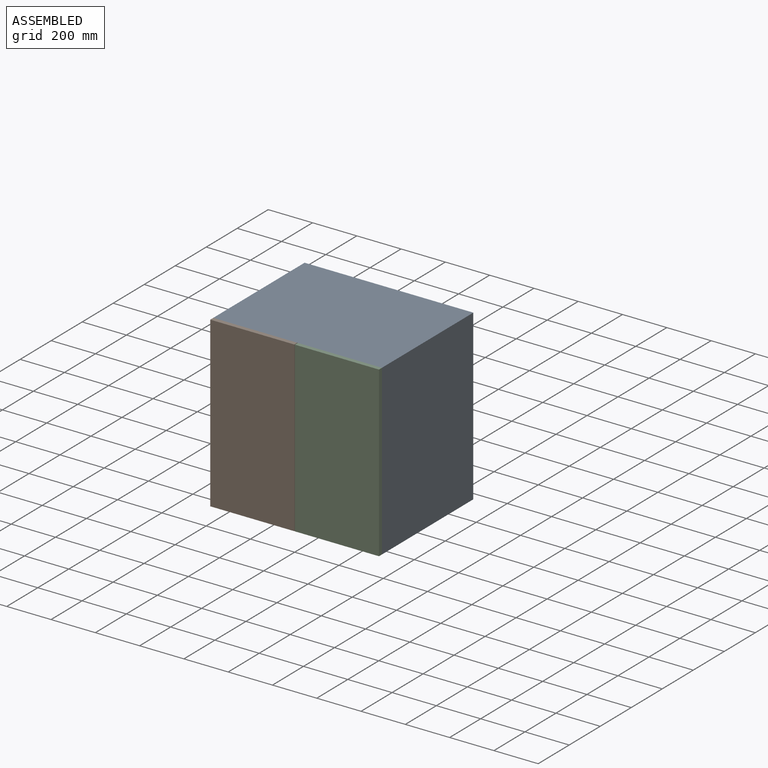
[diagram: assembled view]
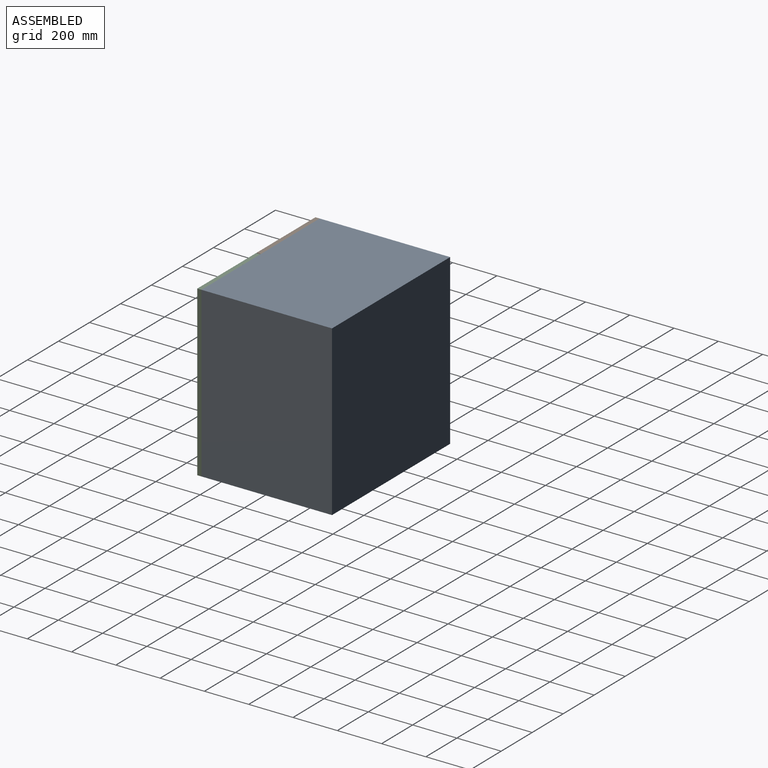
[diagram: assembled view, second angle]
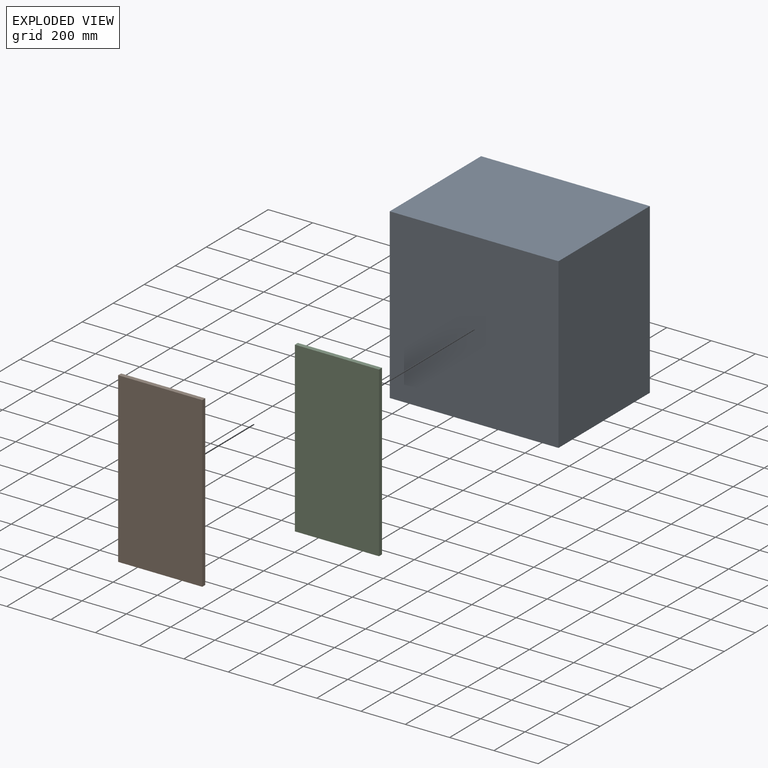
[diagram: exploded view]
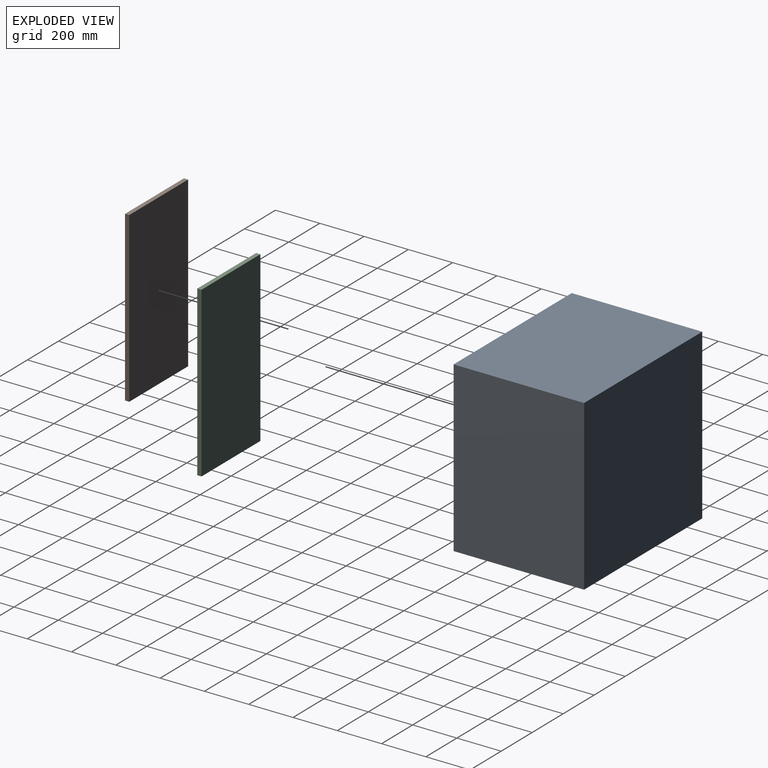
[diagram: exploded view, second angle]
ASSEMBLY  parts=3 mates=2
PART A: 6 faces, bbox 762x589.3x762 mm
  f0: plane 762x589.28mm, normal (-1,0,0), area 449031.4mm2, adj f1,f3,f4,f5
  f1: plane 762x762mm, normal (0,-1,0), area 580644mm2, adj f0,f2,f4,f5
  f2: plane 762x589.28mm, normal (1,0,0), area 449031.4mm2, adj f1,f3,f4,f5
  f3: plane 762x762mm, normal (0,1,0), area 580644mm2, adj f0,f2,f4,f5
  f4: plane 762x589.28mm, normal (0,0,1), area 449031.4mm2, adj f0,f1,f2,f3
  f5: plane 762x589.28mm, normal (0,0,-1), area 449031.4mm2, adj f0,f1,f2,f3
PART B: 6 faces, bbox 379.7x19.1x762 mm
  f0: plane 762x19.05mm, normal (1,0,0), area 14516.1mm2, adj f1,f3,f4,f5
  f1: plane 762x379.73mm, normal (0,1,0), area 289354.3mm2, adj f0,f2,f4,f5
  f2: plane 762x19.05mm, normal (-1,0,0), area 14516.1mm2, adj f1,f3,f4,f5
  f3: plane 762x379.73mm, normal (0,-1,0), area 289354.3mm2, adj f0,f2,f4,f5
  f4: plane 379.73x19.05mm, normal (0,0,1), area 7233.9mm2, adj f0,f1,f2,f3
  f5: plane 379.73x19.05mm, normal (0,0,-1), area 7233.9mm2, adj f0,f1,f2,f3
PART C: same geometry as B
PLACE A t=(116.79,831.22,-116.81)mm
PLACE B t=(116.79,832.49,-116.81)mm
PLACE C t=(499.06,832.49,-116.81)mm
MATE fastened A.f1 <-> C.f1  axis (0,-1,0) through (499.06,535.94,645.19)mm
MATE fastened A.f1 <-> B.f1  axis (0,-1,0) through (-262.94,535.94,645.19)mm
